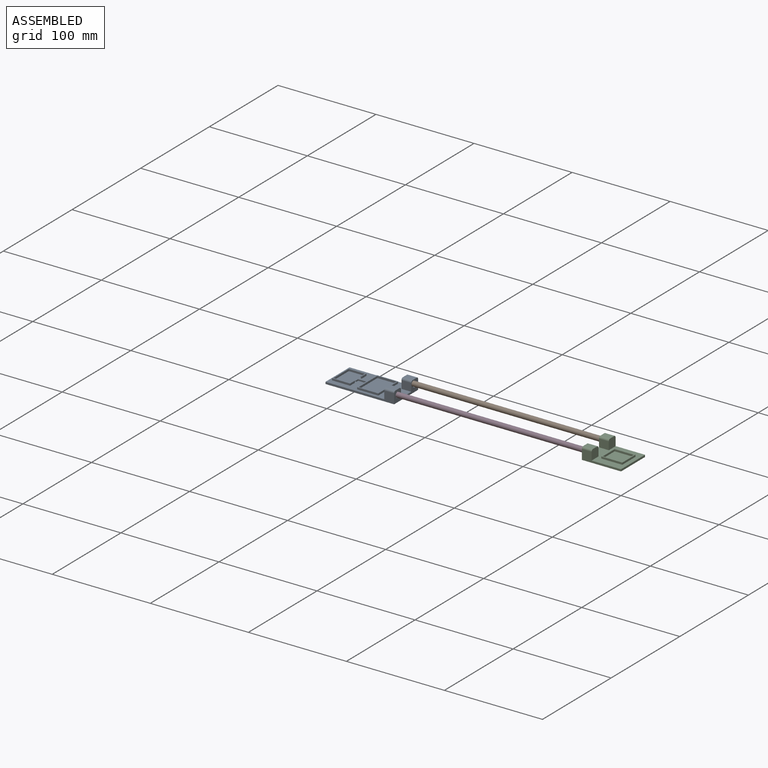
[diagram: assembled view]
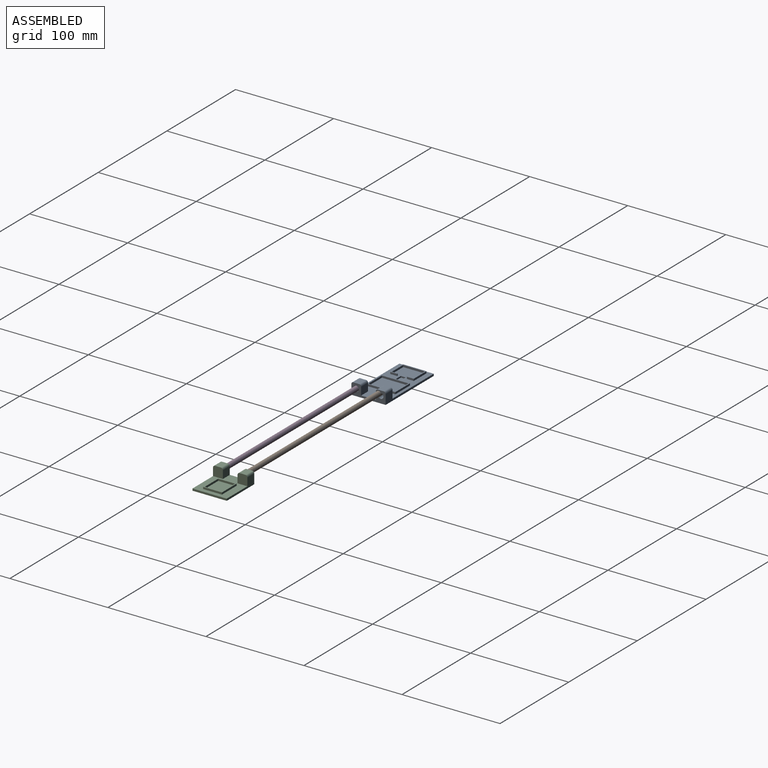
[diagram: assembled view, second angle]
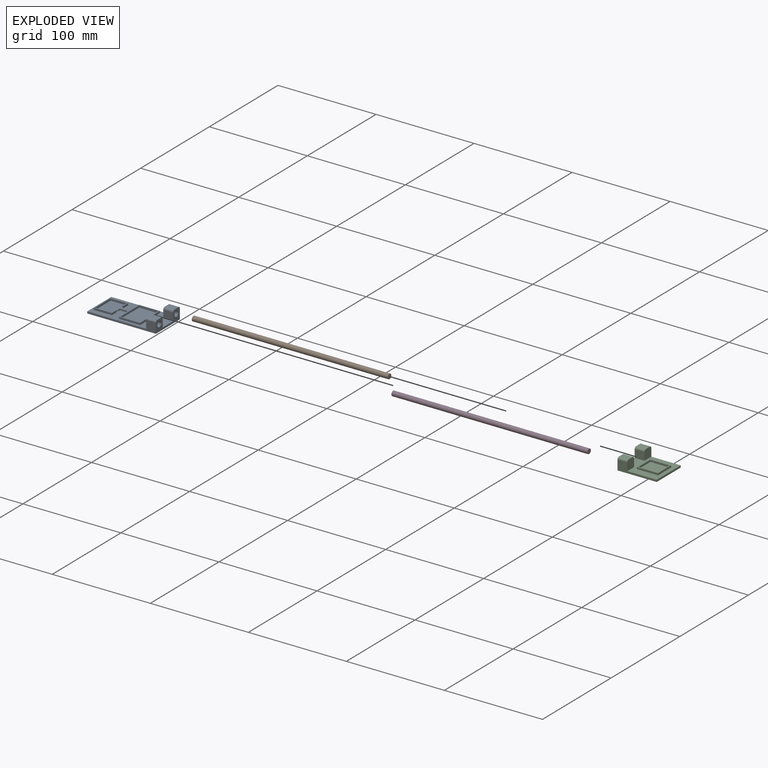
[diagram: exploded view]
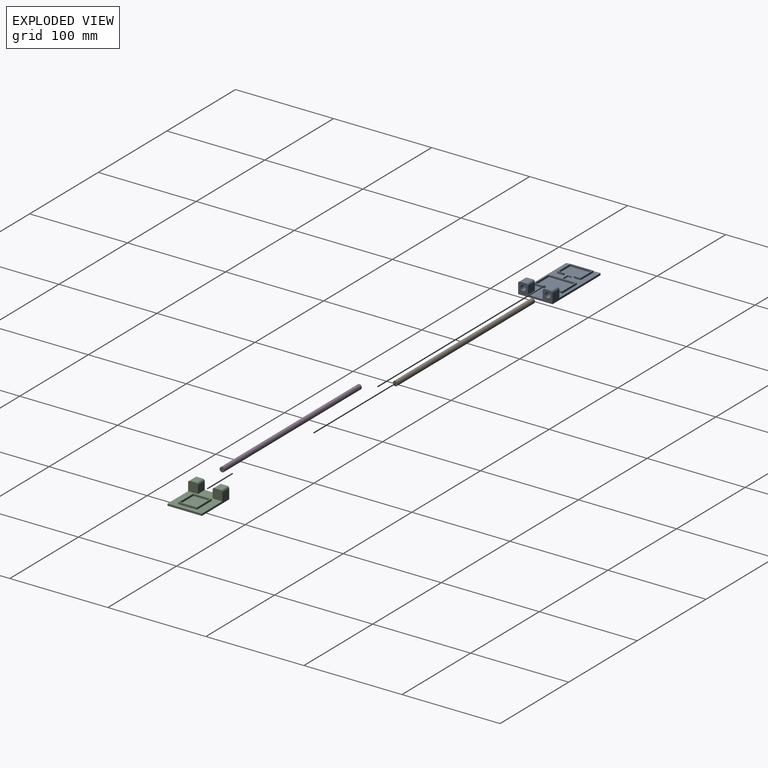
[diagram: exploded view, second angle]
ASSEMBLY  parts=4 mates=2
PART A: 48 faces, bbox 70x35x12 mm
  f0: plane 70x35mm, normal (0,0,1), area 1515.5mm2, adj f1,f2,f3,f4,f6,f7,f8,f13
  f1: plane 70x10mm, normal (0,1,0), area 220mm2, adj f0,f2,f4,f5,f29,f47
  f2: plane 35x2mm, normal (-1,0,0), area 70mm2, adj f0,f1,f3,f5
  f3: plane 70x10mm, normal (0,-1,0), area 220mm2, adj f0,f2,f4,f5,f33,f44
  f4: plane 35x12mm, normal (1,0,0), area 219mm2, adj f0,f1,f3,f5,f30,f31,f32,f34
  f5: plane 70x35mm, normal (0,0,-1), area 2450mm2, adj f1,f2,f3,f4
  f6: plane 29x2mm, normal (1,0,0), area 58mm2, adj f0,f7,f13,f14
  f7: plane 21.5x2mm, normal (0,1,0), area 43mm2, adj f0,f6,f8,f14
  f8: plane 29x2mm, normal (-1,0,0), area 58mm2, adj f0,f7,f13,f14
  f9: plane 27x2mm, normal (-1,0,0), area 54mm2, adj f10,f12,f14,f15
  f10: plane 19.5x2mm, normal (0,1,0), area 39mm2, adj f9,f11,f14,f15
  f11: plane 27x2mm, normal (1,0,0), area 54mm2, adj f10,f12,f14,f15
  f12: plane 19.5x2mm, normal (0,-1,0), area 39mm2, adj f9,f11,f14,f15
  f13: plane 21.5x2mm, normal (0,-1,0), area 43mm2, adj f0,f6,f8,f14
  f14: plane 29x21.5mm, normal (0,0,1), area 97mm2, adj f6,f7,f8,f9,f10,f11,f12,f13
  f15: plane 27x19.5mm, normal (0,0,1), area 526.5mm2, adj f9,f10,f11,f12
  f16: plane 2x1mm, normal (0,1,0), area 2mm2, adj f0,f17,f27,f28
  f17: plane 6x2mm, normal (-1,0,0), area 12mm2, adj f0,f16,f18,f28
  f18: plane 16.4x2mm, normal (0,1,0), area 32.8mm2, adj f0,f17,f19,f28
  f19: plane 22x2mm, normal (1,0,0), area 44mm2, adj f0,f18,f20,f28
  f20: plane 16.4x2mm, normal (0,-1,0), area 32.8mm2, adj f0,f19,f21,f28
  f21: plane 6x2mm, normal (-1,0,0), area 12mm2, adj f0,f20,f22,f28
  f22: plane 2x1mm, normal (0,-1,0), area 2mm2, adj f0,f21,f23,f28
  f23: plane 7x2mm, normal (1,0,0), area 14mm2, adj f0,f22,f24,f28
  f24: plane 18.4x2mm, normal (0,1,0), area 36.8mm2, adj f0,f23,f25,f28
  f25: plane 24x2mm, normal (-1,0,0), area 48mm2, adj f0,f24,f26,f28
  f26: plane 18.4x2mm, normal (0,-1,0), area 36.8mm2, adj f0,f25,f27,f28
  f27: plane 7x2mm, normal (1,0,0), area 14mm2, adj f0,f16,f26,f28
  f28: plane 24x18.4mm, normal (0,0,1), area 70.8mm2, adj f16,f17,f18,f19,f20,f21,f22,f23
  f29: plane 10x10mm, normal (-1,0,0), area 98.3mm2, adj f0,f1,f30,f31,f46,f47
  f30: plane 10x8mm, normal (0,-1,0), area 80mm2, adj f0,f4,f29,f46
  f31: plane 10x6mm, normal (0,0,1), area 60mm2, adj f4,f29,f46,f47
  f32: plane 10x8mm, normal (0,1,0), area 80mm2, adj f0,f4,f33,f45
  f33: plane 10x10mm, normal (-1,0,0), area 98.3mm2, adj f0,f3,f32,f34,f44,f45
  f34: plane 10x6mm, normal (0,0,1), area 60mm2, adj f4,f33,f44,f45
  f35: plane 8.04x1.5mm, normal (0,-1,0), area 12.1mm2, adj f0,f36,f38,f39
  f36: plane 5x1.5mm, normal (1,0,0), area 7.5mm2, adj f0,f35,f37,f39
  f37: plane 8.04x1.5mm, normal (0,1,0), area 12.1mm2, adj f0,f36,f38,f39
  f38: plane 5x1.5mm, normal (-1,0,0), area 7.5mm2, adj f0,f35,f37,f39
  f39: plane 8.04x5mm, normal (0,0,1), area 40.2mm2, adj f35,f36,f37,f38
  f40: cylinder r=2.75mm len=8mm, axis (1,0,0), area 138.2mm2, adj f4,f41
  f41: plane 5.5x5.5mm, normal (1,0,0), area 23.8mm2, adj f40
  f42: cylinder r=2.75mm len=8mm, axis (1,0,0), area 138.2mm2, adj f4,f43
  f43: plane 5.5x5.5mm, normal (1,0,0), area 23.8mm2, adj f42
  f44: cylinder r=2mm len=10mm, axis (-1,0,0), area 31.4mm2, adj f3,f4,f33,f34
  f45: cylinder r=2mm len=10mm, axis (1,0,0), area 31.4mm2, adj f4,f32,f33,f34
  f46: cylinder r=2mm len=10mm, axis (-1,0,0), area 31.4mm2, adj f4,f29,f30,f31
  f47: cylinder r=2mm len=10mm, axis (1,0,0), area 31.4mm2, adj f1,f4,f29,f31
PART B: 3 faces, bbox 200x5x5 mm
  f0: cylinder r=2.5mm len=200mm, axis (-1,0,0), area 3141.6mm2, adj f1,f2
  f1: plane 5x5mm, normal (1,0,0), area 19.6mm2, adj f0
  f2: plane 5x5mm, normal (-1,0,0), area 19.6mm2, adj f0
PART C: 30 faces, bbox 40x35x12 mm
  f0: plane 40x35mm, normal (0,0,1), area 788.3mm2, adj f1,f2,f3,f4,f6,f7,f8,f13
  f1: plane 40x10mm, normal (0,1,0), area 160mm2, adj f0,f2,f4,f5,f16,f29
  f2: plane 35x2mm, normal (-1,0,0), area 70mm2, adj f0,f1,f3,f5
  f3: plane 40x10mm, normal (0,-1,0), area 160mm2, adj f0,f2,f4,f5,f20,f26
  f4: plane 35x12mm, normal (1,0,0), area 219mm2, adj f0,f1,f3,f5,f17,f18,f19,f21
  f5: plane 40x35mm, normal (0,0,-1), area 1400mm2, adj f1,f2,f3,f4
  f6: plane 19.15x2mm, normal (1,0,0), area 38.3mm2, adj f0,f7,f13,f14
  f7: plane 21.5x2mm, normal (0,1,0), area 43mm2, adj f0,f6,f8,f14
  f8: plane 19.15x2mm, normal (-1,0,0), area 38.3mm2, adj f0,f7,f13,f14
  f9: plane 17.15x2mm, normal (-1,0,0), area 34.3mm2, adj f10,f12,f14,f15
  f10: plane 19.5x2mm, normal (0,1,0), area 39mm2, adj f9,f11,f14,f15
  f11: plane 17.15x2mm, normal (1,0,0), area 34.3mm2, adj f10,f12,f14,f15
  f12: plane 19.5x2mm, normal (0,-1,0), area 39mm2, adj f9,f11,f14,f15
  f13: plane 21.5x2mm, normal (0,-1,0), area 43mm2, adj f0,f6,f8,f14
  f14: plane 21.5x19.15mm, normal (0,0,1), area 77.3mm2, adj f6,f7,f8,f9,f10,f11,f12,f13
  f15: plane 19.5x17.15mm, normal (0,0,1), area 334.4mm2, adj f9,f10,f11,f12
  f16: plane 10x10mm, normal (-1,0,0), area 98.3mm2, adj f0,f1,f17,f18,f28,f29
  f17: plane 10x8mm, normal (0,-1,0), area 80mm2, adj f0,f4,f16,f28
  f18: plane 10x6mm, normal (0,0,1), area 60mm2, adj f4,f16,f28,f29
  f19: plane 10x8mm, normal (0,1,0), area 80mm2, adj f0,f4,f20,f27
  f20: plane 10x10mm, normal (-1,0,0), area 98.3mm2, adj f0,f3,f19,f21,f26,f27
  f21: plane 10x6mm, normal (0,0,1), area 60mm2, adj f4,f20,f26,f27
  f22: cylinder r=2.75mm len=8mm, axis (1,0,0), area 138.2mm2, adj f4,f23
  f23: plane 5.5x5.5mm, normal (1,0,0), area 23.8mm2, adj f22
  f24: cylinder r=2.75mm len=8mm, axis (1,0,0), area 138.2mm2, adj f4,f25
  f25: plane 5.5x5.5mm, normal (1,0,0), area 23.8mm2, adj f24
  f26: cylinder r=2mm len=10mm, axis (-1,0,0), area 31.4mm2, adj f3,f4,f20,f21
  f27: cylinder r=2mm len=10mm, axis (1,0,0), area 31.4mm2, adj f4,f19,f20,f21
  f28: cylinder r=2mm len=10mm, axis (-1,0,0), area 31.4mm2, adj f4,f16,f17,f18
  f29: cylinder r=2mm len=10mm, axis (1,0,0), area 31.4mm2, adj f1,f4,f16,f18
PART D: same geometry as B
PLACE A t=(-3.83,31.66,-42.55)mm
PLACE B t=(41.42,58.99,-33.99)mm
PLACE C rot(axis=(0,0,1),180deg) t=(259,65.51,-42.55)mm
PLACE D t=(42.31,36.09,-35.55)mm
MATE cylindrical A.f42 <-> D.f0  axis (1,0,0) through (46.86,36.09,-35.55)mm
MATE cylindrical C.f22 <-> D.f0  axis (-1,0,0) through (242.31,36.09,-35.55)mm
